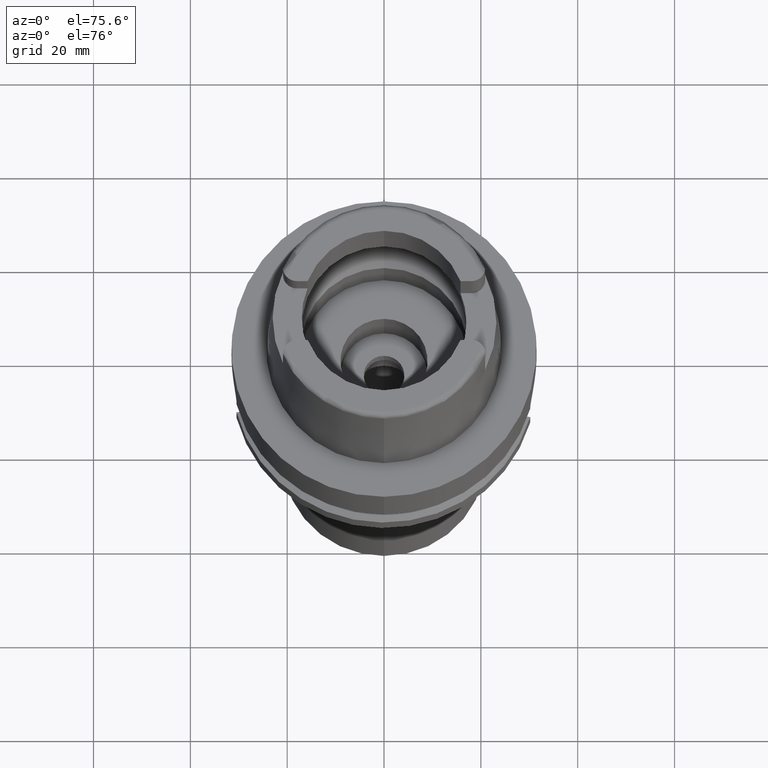
[diagram: clean part render]
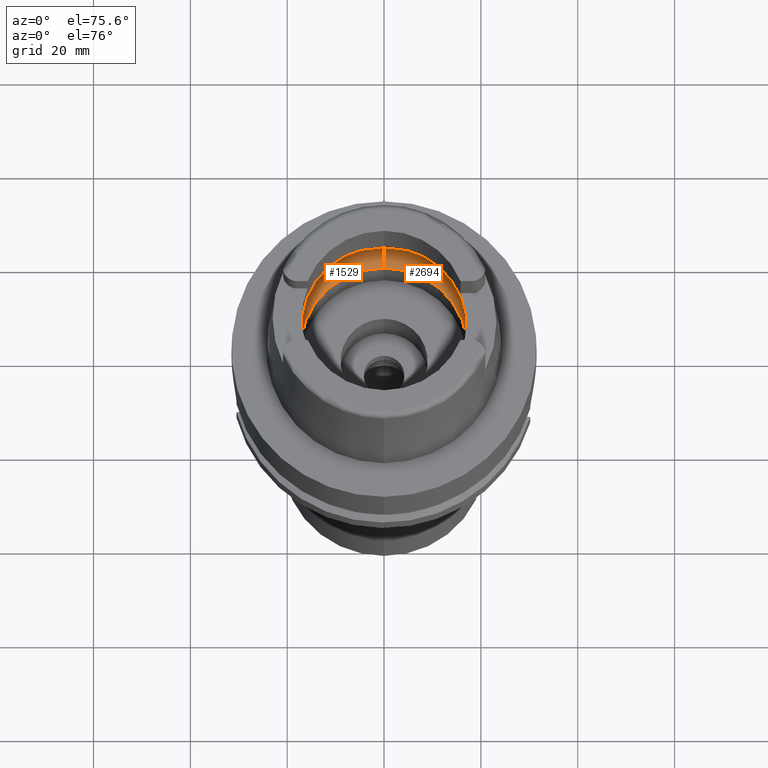
[diagram: same view with one multi-face feature highlighted, each face labeled with its STEP entity id]
A machine part, auxiliary view. The highlighted faces form ONE feature: a constant-radius fillet chain: 2 tangent blend faces with common blend radius 8 mm. The faces share edges in the B-rep.
Their STEP definitions:
[1] entity #2694 (Torus):
#14 = CARTESIAN_POINT ( 'NONE',  ( 0.0000000000000000000, -12.00000000000000000, 6.186348233825000875 ) ) ;
#64 = VERTEX_POINT ( 'NONE', #4886 ) ;
#162 = VERTEX_POINT ( 'NONE', #4796 ) ;
#175 = VERTEX_POINT ( 'NONE', #3177 ) ;
#231 = CARTESIAN_POINT ( 'NONE',  ( 0.0000000000000000000, 0.0000000000000000000, 0.1500000000000999700 ) ) ;
#234 = ORIENTED_EDGE ( 'NONE', *, *, #1870, .F. ) ;
#251 = AXIS2_PLACEMENT_3D ( 'NONE', #14, #1779, #5263 ) ;
#262 = CIRCLE ( 'NONE', #4172, 7.999999999999992895 ) ;
#397 = ORIENTED_EDGE ( 'NONE', *, *, #1305, .F. ) ;
#403 = EDGE_CURVE ( 'NONE', #3612, #5210, #2438, .T. ) ;
#430 = CARTESIAN_POINT ( 'NONE',  ( 19.84575864665999845, -2.479085262491000030, 6.186348233825000875 ) ) ;
#599 = CARTESIAN_POINT ( 'NONE',  ( 19.90654459260023401, 1.770006697072565638, 5.691880654306289422 ) ) ;
#687 = CARTESIAN_POINT ( 'NONE',  ( 19.90996060949652602, -1.795819319521762880, 5.670329520825312386 ) ) ;
#730 = B_SPLINE_CURVE_WITH_KNOTS ( 'NONE', 3,
 ( #4086, #1101, #1922, #3217, #2824, #3645, #2875, #5368, #5395, #1898, #2346, #1484, #687, #3266, #1074 ),
 .UNSPECIFIED., .F., .F.,
 ( 4, 2, 2, 1, 1, 1, 2, 2, 4 ),
 ( 0.0000000000000000000, 0.2499999999999993339, 0.3749999999999989453, 0.4374999999999988343, 0.4687499999999988343, 0.4843749999999986122, 0.4921874999999987788, 0.4999999999999990008, 1.000000000000000000 ),
 .UNSPECIFIED. ) ;
#840 = CARTESIAN_POINT ( 'NONE',  ( 19.92517798419736508, 1.343609062691706768, 5.498960846759680443 ) ) ;
#948 = ORIENTED_EDGE ( 'NONE', *, *, #403, .T. ) ;
#1074 = CARTESIAN_POINT ( 'NONE',  ( 19.84575864665999845, -2.479085262491000030, 6.186348233825000875 ) ) ;
#1101 = CARTESIAN_POINT ( 'NONE',  ( 19.94501428475999916, -0.2480012822881115242, 5.249999999999998224 ) ) ;
#1208 = EDGE_CURVE ( 'NONE', #1396, #5086, #730, .T. ) ;
#1305 = EDGE_CURVE ( 'NONE', #175, #162, #262, .T. ) ;
#1361 = CARTESIAN_POINT ( 'NONE',  ( 0.0000000000000000000, 0.0000000000000000000, 6.186348233825000875 ) ) ;
#1371 = CARTESIAN_POINT ( 'NONE',  ( 19.84575864665999845, 2.479085262491000030, 6.186348233825000875 ) ) ;
#1396 = VERTEX_POINT ( 'NONE', #3348 ) ;
#1397 = CARTESIAN_POINT ( 'NONE',  ( 19.92208506923287104, 1.430037391292800830, 5.533134286468000873 ) ) ;
#1400 = CARTESIAN_POINT ( 'NONE',  ( 0.0000000000000000000, 0.0000000000000000000, 6.186348233825000875 ) ) ;
#1484 = CARTESIAN_POINT ( 'NONE',  ( 19.92591691872321036, -1.321755966737460097, 5.490652197696743286 ) ) ;
#1533 = DIRECTION ( 'NONE',  ( 1.000000000000000000, 0.0000000000000000000, 0.0000000000000000000 ) ) ;
#1561 = ORIENTED_EDGE ( 'NONE', *, *, #4633, .F. ) ;
#1613 = EDGE_CURVE ( 'NONE', #3612, #175, #3325, .T. ) ;
#1779 = DIRECTION ( 'NONE',  ( -1.000000000000000000, 0.0000000000000000000, 0.0000000000000000000 ) ) ;
#1870 = EDGE_CURVE ( 'NONE', #5086, #5210, #2158, .T. ) ;
#1871 = ORIENTED_EDGE ( 'NONE', *, *, #1208, .F. ) ;
#1898 = CARTESIAN_POINT ( 'NONE',  ( 19.92646951840612601, -1.305026090026983221, 5.484399317726092349 ) ) ;
#1922 = CARTESIAN_POINT ( 'NONE',  ( 19.94340238078356720, -0.4850176595367955978, 5.274610361541469672 ) ) ;
#1988 = CIRCLE ( 'NONE', #5147, 20.00000000000000000 ) ;
#2108 = EDGE_CURVE ( 'NONE', #162, #64, #1988, .T. ) ;
#2158 = CIRCLE ( 'NONE', #4161, 20.00000000000001421 ) ;
#2281 = CARTESIAN_POINT ( 'NONE',  ( 19.92391571847978327, 1.379818936262329210, 5.513021260670505796 ) ) ;
#2298 = DIRECTION ( 'NONE',  ( 0.9922879323327794543, -0.1239542631244973381, 0.0000000000000000000 ) ) ;
#2325 = DIRECTION ( 'NONE',  ( 0.0000000000000000000, 0.0000000000000000000, -1.000000000000000000 ) ) ;
#2340 = AXIS2_PLACEMENT_3D ( 'NONE', #231, #4042, #4892 ) ;
#2346 = CARTESIAN_POINT ( 'NONE',  ( 19.92607283891191727, -1.317061137141631644, 5.488890315884864535 ) ) ;
#2395 = CARTESIAN_POINT ( 'NONE',  ( 0.0000000000000000000, -17.25000000000000000, 0.1500000000000999700 ) ) ;
#2438 = CIRCLE ( 'NONE', #251, 7.999999999999992895 ) ;
#2572 = CARTESIAN_POINT ( 'NONE',  ( 19.93856675271270618, 0.9459631445367676639, 5.348221889603026469 ) ) ;
#2694 = ADVANCED_FACE ( 'NONE', ( #4014 ), #3799, .F. ) ;
#2765 = CARTESIAN_POINT ( 'NONE',  ( 19.92467627844355249, 1.358116918539703288, 5.504563131532022702 ) ) ;
#2813 = AXIS2_PLACEMENT_3D ( 'NONE', #1400, #5255, #3097 ) ;
#2824 = CARTESIAN_POINT ( 'NONE',  ( 19.93655178888372603, -0.9261198900591779415, 5.364559530321097114 ) ) ;
#2875 = CARTESIAN_POINT ( 'NONE',  ( 19.93096049696546856, -1.157939335591951835, 5.432578789541310016 ) ) ;
#3019 = CARTESIAN_POINT ( 'NONE',  ( 0.0000000000000000000, 0.0000000000000000000, 6.186348233825000875 ) ) ;
#3072 = ORIENTED_EDGE ( 'NONE', *, *, #2108, .F. ) ;
#3097 = DIRECTION ( 'NONE',  ( 0.0000000000000000000, 1.000000000000000000, 0.0000000000000000000 ) ) ;
#3152 = CARTESIAN_POINT ( 'NONE',  ( 19.90056795285840252, 1.871072381427654641, 5.748193827892907670 ) ) ;
#3177 = CARTESIAN_POINT ( 'NONE',  ( 0.0000000000000000000, 17.25000000000000000, 0.1500000000000999700 ) ) ;
#3181 = CARTESIAN_POINT ( 'NONE',  ( 19.86453973035713005, 2.328737527431126608, 6.053878089965426312 ) ) ;
#3217 = CARTESIAN_POINT ( 'NONE',  ( 19.93856666885426776, -0.8185636124059944008, 5.338679045133568835 ) ) ;
#3266 = CARTESIAN_POINT ( 'NONE',  ( 19.88332301270226665, -2.178372191595277396, 5.921392438207983666 ) ) ;
#3325 = CIRCLE ( 'NONE', #2340, 17.25000000000000000 ) ;
#3348 = CARTESIAN_POINT ( 'NONE',  ( 19.94501428475999916, 0.0000000000000000000, 5.250000000000000000 ) ) ;
#3612 = VERTEX_POINT ( 'NONE', #2395 ) ;
#3645 = CARTESIAN_POINT ( 'NONE',  ( 19.93292500493674524, -1.081634238850563756, 5.408973163817657692 ) ) ;
#3799 = TOROIDAL_SURFACE ( 'NONE', #2813, 12.00000000000000000, 8.000000000000000000 ) ;
#4012 = CARTESIAN_POINT ( 'NONE',  ( 19.91448538158095616, 1.610508053762637504, 5.612924102263966653 ) ) ;
#4014 = FACE_OUTER_BOUND ( 'NONE', #5116, .T. ) ;
#4042 = DIRECTION ( 'NONE',  ( 0.0000000000000000000, 0.0000000000000000000, 1.000000000000000000 ) ) ;
#4074 = CARTESIAN_POINT ( 'NONE',  ( 19.92547020324161622, 1.335027099705274445, 5.495682146681705404 ) ) ;
#4086 = CARTESIAN_POINT ( 'NONE',  ( 19.94501428475999916, 0.0000000000000000000, 5.250000000000000000 ) ) ;
#4161 = AXIS2_PLACEMENT_3D ( 'NONE', #1361, #2325, #2298 ) ;
#4172 = AXIS2_PLACEMENT_3D ( 'NONE', #5428, #1533, #4997 ) ;
#4263 = DIRECTION ( 'NONE',  ( 0.0000000000000000000, 1.000000000000000000, 0.0000000000000000000 ) ) ;
#4314 = CARTESIAN_POINT ( 'NONE',  ( 19.91819973341328875, 1.528786876979157716, 5.574825955112756581 ) ) ;
#4633 = EDGE_CURVE ( 'NONE', #64, #1396, #5220, .T. ) ;
#4783 = DIRECTION ( 'NONE',  ( 0.0000000000000000000, 0.0000000000000000000, -1.000000000000000000 ) ) ;
#4796 = CARTESIAN_POINT ( 'NONE',  ( 0.0000000000000000000, 20.00000000000000000, 6.186348233825000875 ) ) ;
#4857 = CARTESIAN_POINT ( 'NONE',  ( 19.94501428475999916, 0.0000000000000000000, 5.250000000000000000 ) ) ;
#4886 = CARTESIAN_POINT ( 'NONE',  ( 19.84575864665999845, 2.479085262491000030, 6.186348233825000875 ) ) ;
#4892 = DIRECTION ( 'NONE',  ( 0.0000000000000000000, -1.000000000000000000, 0.0000000000000000000 ) ) ;
#4997 = DIRECTION ( 'NONE',  ( 0.0000000000000000000, 0.6562500000000006661, -0.7545435292281016393 ) ) ;
#5086 = VERTEX_POINT ( 'NONE', #430 ) ;
#5116 = EDGE_LOOP ( 'NONE', ( #1561, #3072, #397, #5298, #948, #234, #1871 ) ) ;
#5147 = AXIS2_PLACEMENT_3D ( 'NONE', #3019, #4783, #4263 ) ;
#5210 = VERTEX_POINT ( 'NONE', #5211 ) ;
#5211 = CARTESIAN_POINT ( 'NONE',  ( 0.0000000000000000000, -20.00000000000000000, 6.186348233825000875 ) ) ;
#5220 = B_SPLINE_CURVE_WITH_KNOTS ( 'NONE', 3,
 ( #1371, #3181, #5274, #3152, #599, #4012, #4314, #1397, #2281, #2765, #840, #4074, #2572, #5301, #4857 ),
 .UNSPECIFIED., .F., .F.,
 ( 4, 2, 2, 1, 1, 1, 2, 2, 4 ),
 ( 0.0000000000000000000, 0.2500000000000098810, 0.3750000000000143774, 0.4375000000000168199, 0.4687500000000177636, 0.4843750000000178746, 0.4921875000000178191, 0.5000000000000177636, 1.000000000000000000 ),
 .UNSPECIFIED. ) ;
#5255 = DIRECTION ( 'NONE',  ( 0.0000000000000000000, 0.0000000000000000000, 1.000000000000000000 ) ) ;
#5263 = DIRECTION ( 'NONE',  ( 0.0000000000000000000, -0.6562500000000006661, -0.7545435292281016393 ) ) ;
#5274 = CARTESIAN_POINT ( 'NONE',  ( 19.88058969236887918, 2.158413152842832083, 5.925203484518751118 ) ) ;
#5298 = ORIENTED_EDGE ( 'NONE', *, *, #1613, .F. ) ;
#5301 = CARTESIAN_POINT ( 'NONE',  ( 19.94501428475999916, 0.4960402853743813290, 5.250000000000000888 ) ) ;
#5368 = CARTESIAN_POINT ( 'NONE',  ( 19.92840411800285239, -1.244366584479200233, 5.462313247185337062 ) ) ;
#5395 = CARTESIAN_POINT ( 'NONE',  ( 19.92705981527248582, -1.286926606873759260, 5.477698152406421883 ) ) ;
#5428 = CARTESIAN_POINT ( 'NONE',  ( 0.0000000000000000000, 12.00000000000000000, 6.186348233825000875 ) ) ;
[2] entity #1529 (Torus):
#14 = CARTESIAN_POINT ( 'NONE',  ( 0.0000000000000000000, -12.00000000000000000, 6.186348233825000875 ) ) ;
#162 = VERTEX_POINT ( 'NONE', #4796 ) ;
#168 = CARTESIAN_POINT ( 'NONE',  ( -19.90654447560747542, -1.770008974173177263, 5.691881888190377659 ) ) ;
#175 = VERTEX_POINT ( 'NONE', #3177 ) ;
#251 = AXIS2_PLACEMENT_3D ( 'NONE', #14, #1779, #5263 ) ;
#262 = CIRCLE ( 'NONE', #4172, 7.999999999999992895 ) ;
#275 = CARTESIAN_POINT ( 'NONE',  ( -19.92208494194046509, -1.430041077684033990, 5.533135808937241329 ) ) ;
#303 = CIRCLE ( 'NONE', #1851, 20.00000000000001421 ) ;
#384 = VERTEX_POINT ( 'NONE', #3596 ) ;
#403 = EDGE_CURVE ( 'NONE', #3612, #5210, #2438, .T. ) ;
#489 = CARTESIAN_POINT ( 'NONE',  ( 0.0000000000000000000, 0.0000000000000000000, 6.186348233825000875 ) ) ;
#557 = DIRECTION ( 'NONE',  ( 0.0000000000000000000, 0.0000000000000000000, 1.000000000000000000 ) ) ;
#601 = CARTESIAN_POINT ( 'NONE',  ( -19.92646963884338263, 1.305022040076338818, 5.484397814373272340 ) ) ;
#626 = DIRECTION ( 'NONE',  ( 0.0000000000000000000, 0.0000000000000000000, -1.000000000000000000 ) ) ;
#673 = CARTESIAN_POINT ( 'NONE',  ( -19.84575864665999845, -2.479085262491000030, 6.186348233825000875 ) ) ;
#1041 = CARTESIAN_POINT ( 'NONE',  ( -19.94340239125193293, 0.4850157974226460000, 5.274610163457148282 ) ) ;
#1065 = CARTESIAN_POINT ( 'NONE',  ( -19.93096058823649130, 1.157935579649966629, 5.432577573767241041 ) ) ;
#1079 = TOROIDAL_SURFACE ( 'NONE', #5227, 12.00000000000000000, 8.000000000000000000 ) ;
#1120 = CARTESIAN_POINT ( 'NONE',  ( -19.92591704426989452, 1.321751840890049490, 5.490650643677390974 ) ) ;
#1137 = CARTESIAN_POINT ( 'NONE',  ( -19.91448525756728927, -1.610510976265786987, 5.612925495665686881 ) ) ;
#1218 = ORIENTED_EDGE ( 'NONE', *, *, #1571, .F. ) ;
#1268 = FACE_OUTER_BOUND ( 'NONE', #1272, .T. ) ;
#1272 = EDGE_LOOP ( 'NONE', ( #1218, #1597, #2396, #1895, #3703, #1629, #2840 ) ) ;
#1305 = EDGE_CURVE ( 'NONE', #175, #162, #262, .T. ) ;
#1504 = CARTESIAN_POINT ( 'NONE',  ( -19.93856671072771292, 0.8185607198028845843, 5.338678409714962214 ) ) ;
#1518 = CARTESIAN_POINT ( 'NONE',  ( -19.94501428475999560, -0.4960423020627297008, 5.249999999999995559 ) ) ;
#1529 = ADVANCED_FACE ( 'NONE', ( #1268 ), #1079, .F. ) ;
#1533 = DIRECTION ( 'NONE',  ( 1.000000000000000000, 0.0000000000000000000, 0.0000000000000000000 ) ) ;
#1571 = EDGE_CURVE ( 'NONE', #5210, #2643, #2708, .T. ) ;
#1597 = ORIENTED_EDGE ( 'NONE', *, *, #403, .F. ) ;
#1629 = ORIENTED_EDGE ( 'NONE', *, *, #2821, .F. ) ;
#1779 = DIRECTION ( 'NONE',  ( -1.000000000000000000, 0.0000000000000000000, 0.0000000000000000000 ) ) ;
#1851 = AXIS2_PLACEMENT_3D ( 'NONE', #4943, #4130, #2845 ) ;
#1895 = ORIENTED_EDGE ( 'NONE', *, *, #1305, .T. ) ;
#1908 = CARTESIAN_POINT ( 'NONE',  ( -19.91819960699401193, -1.528790138807751164, 5.574827418276589341 ) ) ;
#1917 = CARTESIAN_POINT ( 'NONE',  ( -19.93655184384261858, 0.9261166967963114782, 5.364558725656097593 ) ) ;
#1928 = CARTESIAN_POINT ( 'NONE',  ( 0.0000000000000000000, 0.0000000000000000000, 0.1500000000000999700 ) ) ;
#1934 = CARTESIAN_POINT ( 'NONE',  ( -19.88058961472209774, -2.158414018199903417, 5.925204145833316893 ) ) ;
#1951 = CIRCLE ( 'NONE', #5291, 17.25000000000000000 ) ;
#1959 = CARTESIAN_POINT ( 'NONE',  ( -19.92547007504345302, -1.335031240339097369, 5.495683724100088874 ) ) ;
#1996 = VERTEX_POINT ( 'NONE', #4094 ) ;
#2338 = CARTESIAN_POINT ( 'NONE',  ( -19.90996073982917380, 1.795817278995830657, 5.670328124222732136 ) ) ;
#2394 = CARTESIAN_POINT ( 'NONE',  ( -19.88332310116147283, 2.178371483505385786, 5.921391814315846602 ) ) ;
#2395 = CARTESIAN_POINT ( 'NONE',  ( 0.0000000000000000000, -17.25000000000000000, 0.1500000000000999700 ) ) ;
#2396 = ORIENTED_EDGE ( 'NONE', *, *, #4298, .F. ) ;
#2421 = DIRECTION ( 'NONE',  ( 0.0000000000000000000, -1.000000000000000000, 0.0000000000000000000 ) ) ;
#2422 = CARTESIAN_POINT ( 'NONE',  ( -19.94501428476000271, 0.2480002814738951344, 5.249999999999999112 ) ) ;
#2438 = CIRCLE ( 'NONE', #251, 7.999999999999992895 ) ;
#2442 = CARTESIAN_POINT ( 'NONE',  ( -19.92391559123418787, -1.379822842001579009, 5.513022806674898746 ) ) ;
#2643 = VERTEX_POINT ( 'NONE', #2744 ) ;
#2708 = CIRCLE ( 'NONE', #4069, 20.00000000000000000 ) ;
#2744 = CARTESIAN_POINT ( 'NONE',  ( -19.84575864665999845, -2.479085262491000030, 6.186348233825000875 ) ) ;
#2821 = EDGE_CURVE ( 'NONE', #1996, #384, #3896, .T. ) ;
#2840 = ORIENTED_EDGE ( 'NONE', *, *, #4045, .F. ) ;
#2845 = DIRECTION ( 'NONE',  ( -0.9922879323327794543, 0.1239542631244973381, 0.0000000000000000000 ) ) ;
#3177 = CARTESIAN_POINT ( 'NONE',  ( 0.0000000000000000000, 17.25000000000000000, 0.1500000000000999700 ) ) ;
#3252 = CARTESIAN_POINT ( 'NONE',  ( -19.94501428475999916, 0.0000000000000000000, 5.250000000000000000 ) ) ;
#3596 = CARTESIAN_POINT ( 'NONE',  ( -19.84575864665999845, 2.479085262489999941, 6.186348233825000875 ) ) ;
#3612 = VERTEX_POINT ( 'NONE', #2395 ) ;
#3653 = EDGE_CURVE ( 'NONE', #384, #162, #303, .T. ) ;
#3667 = CARTESIAN_POINT ( 'NONE',  ( -19.92607296192538513, 1.317057065037986030, 5.488888788417265907 ) ) ;
#3679 = CARTESIAN_POINT ( 'NONE',  ( -19.93856671042052398, -0.9459665778997381480, 5.348222674928019060 ) ) ;
#3691 = CARTESIAN_POINT ( 'NONE',  ( -19.92705993187612989, 1.286922590644232978, 5.477696685208107930 ) ) ;
#3703 = ORIENTED_EDGE ( 'NONE', *, *, #3653, .F. ) ;
#3864 = DIRECTION ( 'NONE',  ( 0.0000000000000000000, 0.0000000000000000000, 1.000000000000000000 ) ) ;
#3896 = B_SPLINE_CURVE_WITH_KNOTS ( 'NONE', 3,
 ( #4993, #2422, #1041, #1504, #1917, #4508, #1065, #4558, #3691, #601, #3667, #1120, #2338, #2394, #4129 ),
 .UNSPECIFIED., .F., .F.,
 ( 4, 2, 2, 1, 1, 1, 2, 2, 4 ),
 ( 0.0000000000000000000, 0.2499999999999956146, 0.3749999999999934497, 0.4374999999999923395, 0.4687499999999917288, 0.4843749999999914513, 0.4921874999999914513, 0.4999999999999915623, 1.000000000000000000 ),
 .UNSPECIFIED. ) ;
#3954 = B_SPLINE_CURVE_WITH_KNOTS ( 'NONE', 3,
 ( #673, #4179, #1934, #5410, #168, #1137, #1908, #275, #2442, #4549, #4120, #1959, #3679, #1518, #3252 ),
 .UNSPECIFIED., .F., .F.,
 ( 4, 2, 2, 1, 1, 1, 2, 2, 4 ),
 ( 0.0000000000000000000, 0.2500000000000051070, 0.3750000000000077716, 0.4375000000000091038, 0.4687500000000098255, 0.4843750000000101030, 0.4921875000000099920, 0.5000000000000098810, 1.000000000000000000 ),
 .UNSPECIFIED. ) ;
#4045 = EDGE_CURVE ( 'NONE', #2643, #1996, #3954, .T. ) ;
#4069 = AXIS2_PLACEMENT_3D ( 'NONE', #489, #626, #2421 ) ;
#4091 = DIRECTION ( 'NONE',  ( 0.0000000000000000000, 1.000000000000000000, 0.0000000000000000000 ) ) ;
#4094 = CARTESIAN_POINT ( 'NONE',  ( -19.94501428475999916, 0.0000000000000000000, 5.250000000000000000 ) ) ;
#4120 = CARTESIAN_POINT ( 'NONE',  ( -19.92517785718085577, -1.343613127942956842, 5.498962406970089312 ) ) ;
#4129 = CARTESIAN_POINT ( 'NONE',  ( -19.84575864665999845, 2.479085262489999941, 6.186348233825000875 ) ) ;
#4130 = DIRECTION ( 'NONE',  ( 0.0000000000000000000, 0.0000000000000000000, -1.000000000000000000 ) ) ;
#4172 = AXIS2_PLACEMENT_3D ( 'NONE', #5428, #1533, #4997 ) ;
#4179 = CARTESIAN_POINT ( 'NONE',  ( -19.86453968564131500, -2.328737885376345407, 6.053878405347992597 ) ) ;
#4298 = EDGE_CURVE ( 'NONE', #175, #3612, #1951, .T. ) ;
#4508 = CARTESIAN_POINT ( 'NONE',  ( -19.93292508344945801, 1.081630659659294169, 5.408972087979956989 ) ) ;
#4549 = CARTESIAN_POINT ( 'NONE',  ( -19.92467615132159864, -1.358120919786871328, 5.504564686247708671 ) ) ;
#4558 = CARTESIAN_POINT ( 'NONE',  ( -19.92840422587602944, 1.244362650384072122, 5.462311864171463860 ) ) ;
#4719 = CARTESIAN_POINT ( 'NONE',  ( 0.0000000000000000000, 0.0000000000000000000, 6.186348233825000875 ) ) ;
#4796 = CARTESIAN_POINT ( 'NONE',  ( 0.0000000000000000000, 20.00000000000000000, 6.186348233825000875 ) ) ;
#4943 = CARTESIAN_POINT ( 'NONE',  ( 0.0000000000000000000, 0.0000000000000000000, 6.186348233825000875 ) ) ;
#4993 = CARTESIAN_POINT ( 'NONE',  ( -19.94501428475999916, 0.0000000000000000000, 5.250000000000000000 ) ) ;
#4997 = DIRECTION ( 'NONE',  ( 0.0000000000000000000, 0.6562500000000006661, -0.7545435292281016393 ) ) ;
#5210 = VERTEX_POINT ( 'NONE', #5211 ) ;
#5211 = CARTESIAN_POINT ( 'NONE',  ( 0.0000000000000000000, -20.00000000000000000, 6.186348233825000875 ) ) ;
#5227 = AXIS2_PLACEMENT_3D ( 'NONE', #4719, #3864, #5591 ) ;
#5263 = DIRECTION ( 'NONE',  ( 0.0000000000000000000, -0.6562500000000006661, -0.7545435292281016393 ) ) ;
#5291 = AXIS2_PLACEMENT_3D ( 'NONE', #1928, #557, #4091 ) ;
#5410 = CARTESIAN_POINT ( 'NONE',  ( -19.90056784349247820, -1.871074272730828048, 5.748194928871746434 ) ) ;
#5428 = CARTESIAN_POINT ( 'NONE',  ( 0.0000000000000000000, 12.00000000000000000, 6.186348233825000875 ) ) ;
#5591 = DIRECTION ( 'NONE',  ( 0.0000000000000000000, 1.000000000000000000, 0.0000000000000000000 ) ) ;